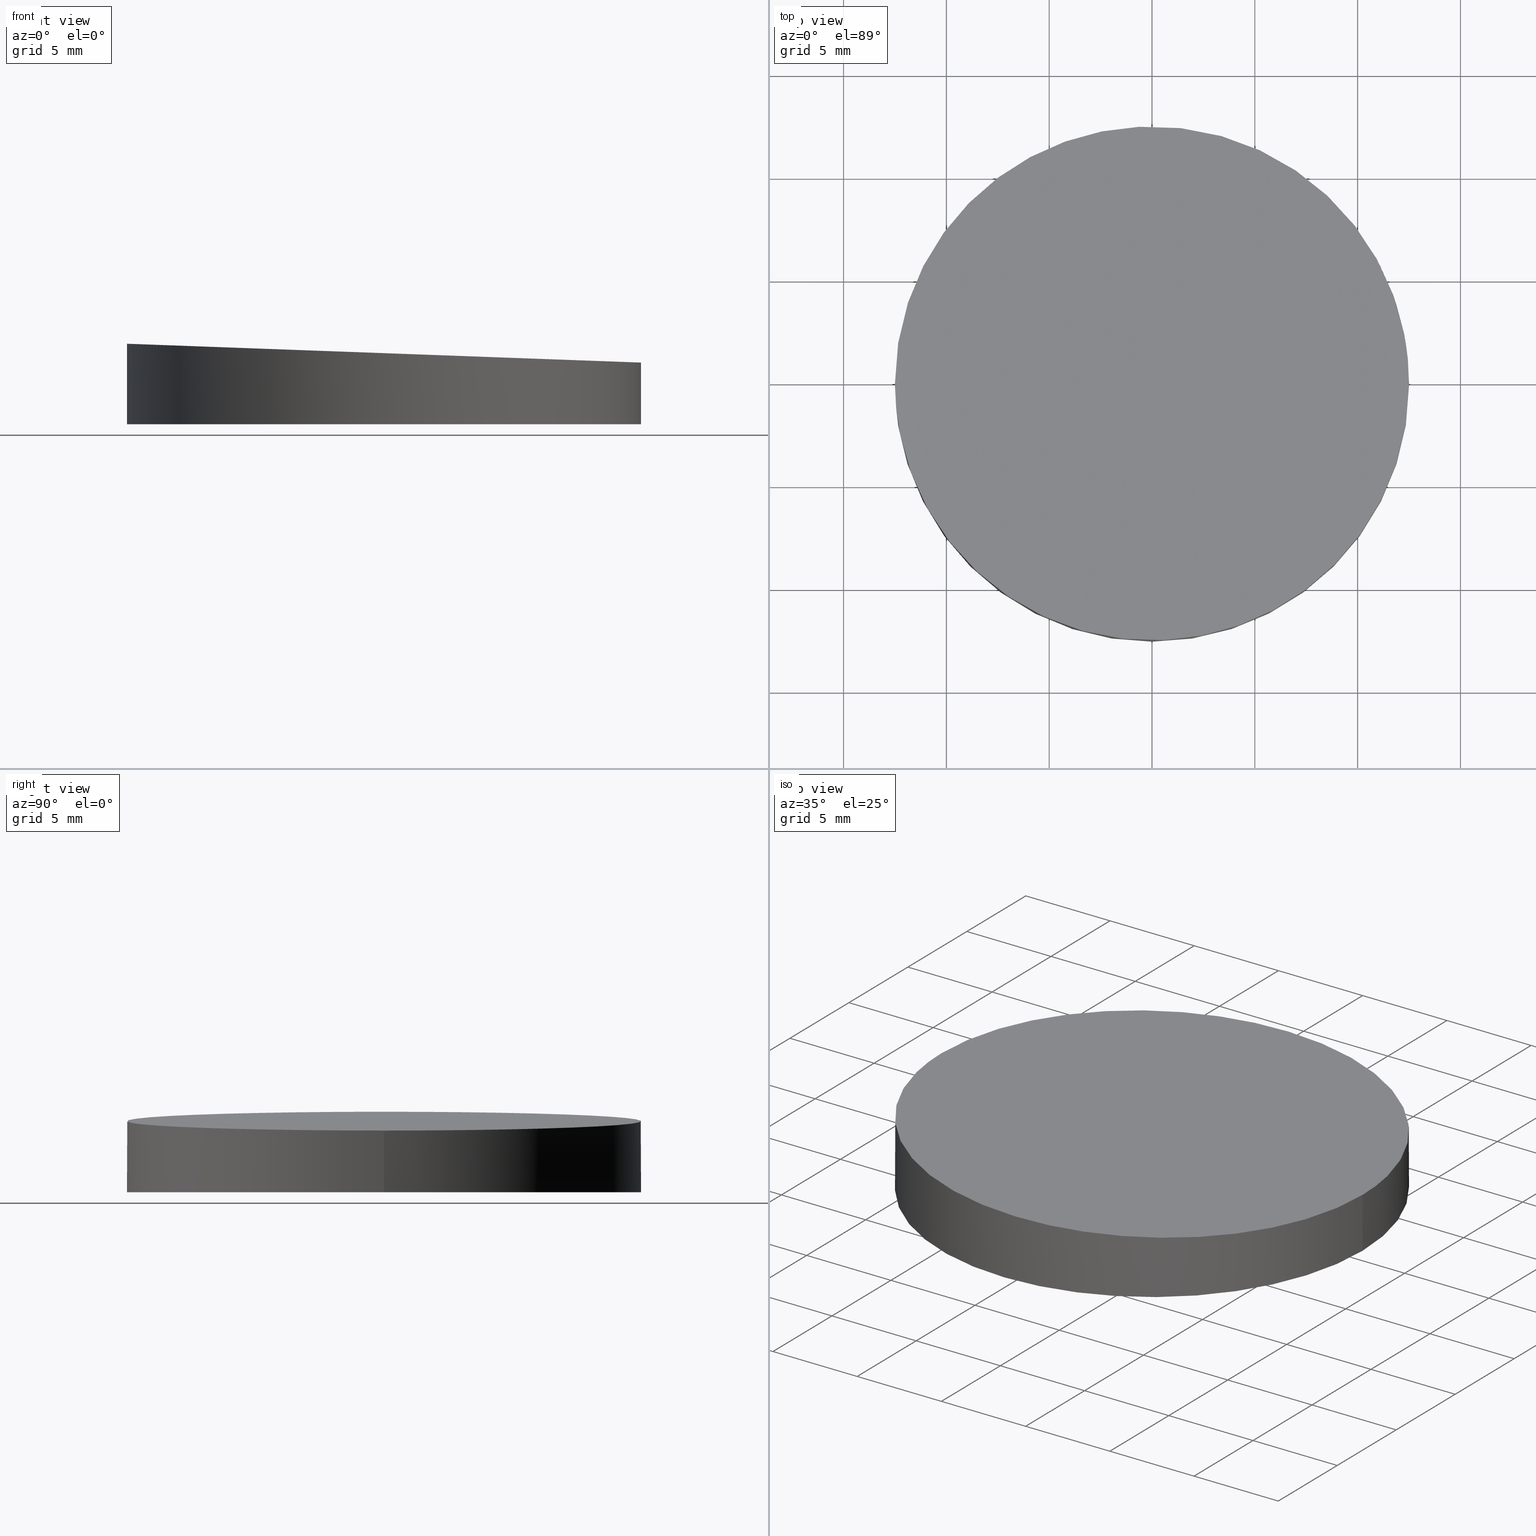
[diagram: canonical four-view strip — front | top / right | iso, engineering-drawing reading convention]
A machine part, canonical four-view strip (front | top / right | iso — engineering-drawing reading convention). The complete STEP part file that produces these views, byte-faithful:
ISO-10303-21;
HEADER;
FILE_DESCRIPTION (( 'STEP AP203' ),
    '1' );
FILE_NAME ('373531.STEP',
    '2021-05-27T04:28:09',
    ( '' ),
    ( '' ),
    'SwSTEP 2.0',
    'SolidWorks 2020',
    '' );
FILE_SCHEMA (( 'CONFIG_CONTROL_DESIGN' ));
ENDSEC;

DATA;
#1 = VERTEX_POINT ( 'NONE', #31 ) ;
#2 = ORIENTED_EDGE ( 'NONE', *, *, #131, .F. ) ;
#3 = ORIENTED_EDGE ( 'NONE', *, *, #86, .F. ) ;
#4 = CC_DESIGN_PERSON_AND_ORGANIZATION_ASSIGNMENT ( #42, #69, ( #7 ) ) ;
#5 = CARTESIAN_POINT ( 'NONE',  ( -12.49999999999999645, 0.000000000000000000, 3.915834547854477155 ) ) ;
#6 = PLANE ( 'NONE',  #34 ) ;
#7 = PRODUCT ( '373531', '373531', '', ( #95 ) ) ;
#8 = CARTESIAN_POINT ( 'NONE',  ( 0.000000000000000000, 0.000000000000000000, 0.000000000000000000 ) ) ;
#9 = APPROVAL_ROLE ( '' ) ;
#10 = CIRCLE ( 'NONE', #108, 12.49999999999999645 ) ;
#11 = AXIS2_PLACEMENT_3D ( 'NONE', #156, #92, #124 ) ;
#12 = APPLICATION_CONTEXT ( 'configuration controlled 3d designs of mechanical parts and assemblies' ) ;
#13 = ADVANCED_FACE ( 'NONE', ( #145 ), #58, .T. ) ;
#14 = DATE_AND_TIME ( #88, #19 ) ;
#15 = COORDINATED_UNIVERSAL_TIME_OFFSET ( 8, 0, .AHEAD. ) ;
#16 = LOCAL_TIME ( 12, 28, 9.000000000000000000, #54 ) ;
#17 = PERSON_AND_ORGANIZATION ( #102, #64 ) ;
#18 = UNCERTAINTY_MEASURE_WITH_UNIT (LENGTH_MEASURE( 1.000000000000000082E-05 ), #94, 'distance_accuracy_value', 'NONE');
#19 = LOCAL_TIME ( 12, 28, 9.000000000000000000, #15 ) ;
#20 =( BOUNDED_CURVE ( )  B_SPLINE_CURVE ( 3, ( #83, #136, #167, #5 ),
 .UNSPECIFIED., .F., .F. ) 
 B_SPLINE_CURVE_WITH_KNOTS ( ( 4, 4 ),
 ( 0.000000000000000000, 3.141592653589793116 ),
 .UNSPECIFIED. ) 
 CURVE ( )  GEOMETRIC_REPRESENTATION_ITEM ( )  RATIONAL_B_SPLINE_CURVE ( ( 1.000000000000000000, 0.3333333333333333703, 0.3333333333333333703, 1.000000000000000000 ) ) 
 REPRESENTATION_ITEM ( '' )  );
#21 = ORIENTED_EDGE ( 'NONE', *, *, #51, .F. ) ;
#22 = LOCAL_TIME ( 12, 28, 9.000000000000000000, #26 ) ;
#23 = CARTESIAN_POINT ( 'NONE',  ( -12.49999999999999645, 0.000000000000000000, 3.915834547854477155 ) ) ;
#24 = FACE_OUTER_BOUND ( 'NONE', #43, .T. ) ;
#25 = DIRECTION ( 'NONE',  ( -0.9993296722765644402, 0.000000000000000000, 0.03660882554267880229 ) ) ;
#26 = COORDINATED_UNIVERSAL_TIME_OFFSET ( 8, 0, .AHEAD. ) ;
#27 = PERSON_AND_ORGANIZATION_ROLE ( 'classification_officer' ) ;
#28 = APPROVAL_PERSON_ORGANIZATION ( #172, #29, #67 ) ;
#29 = APPROVAL ( #149, 'δָ��' ) ;
#30 = DIRECTION ( 'NONE',  ( -0.000000000000000000, -0.000000000000000000, -1.000000000000000000 ) ) ;
#31 = CARTESIAN_POINT ( 'NONE',  ( 12.49999999999999645, 1.530808498934191127E-15, 0.000000000000000000 ) ) ;
#32 = ORIENTED_EDGE ( 'NONE', *, *, #74, .F. ) ;
#33 = ORIENTED_EDGE ( 'NONE', *, *, #174, .T. ) ;
#34 = AXIS2_PLACEMENT_3D ( 'NONE', #84, #109, #25 ) ;
#35 = SECURITY_CLASSIFICATION ( '', '', #128 ) ;
#36 =( NAMED_UNIT ( * ) PLANE_ANGLE_UNIT ( ) SI_UNIT ( $, .RADIAN. ) );
#37 = LINE ( 'NONE', #66, #134 ) ;
#38 = CC_DESIGN_APPROVAL ( #48, ( #113 ) ) ;
#39 = DIRECTION ( 'NONE',  ( 1.000000000000000000, 0.000000000000000000, 0.000000000000000000 ) ) ;
#40 = PERSON_AND_ORGANIZATION_ROLE ( 'design_supplier' ) ;
#41 = COORDINATED_UNIVERSAL_TIME_OFFSET ( 8, 0, .AHEAD. ) ;
#42 = PERSON_AND_ORGANIZATION ( #102, #64 ) ;
#43 = EDGE_LOOP ( 'NONE', ( #119, #165, #132, #91 ) ) ;
#44 = EDGE_LOOP ( 'NONE', ( #32, #33, #103, #61 ) ) ;
#45 = PRODUCT_RELATED_PRODUCT_CATEGORY ( 'detail', '', ( #7 ) ) ;
#46 = DIRECTION ( 'NONE',  ( 1.000000000000000000, 0.000000000000000000, -0.000000000000000000 ) ) ;
#47 = DIRECTION ( 'NONE',  ( -0.000000000000000000, -0.000000000000000000, -1.000000000000000000 ) ) ;
#48 = APPROVAL ( #52, 'δָ��' ) ;
#49 = DIRECTION ( 'NONE',  ( -0.000000000000000000, -0.000000000000000000, -1.000000000000000000 ) ) ;
#50 = PRODUCT_DEFINITION_SHAPE ( 'NONE', 'NONE',  #143 ) ;
#51 = EDGE_CURVE ( 'NONE', #1, #78, #10, .T. ) ;
#52 = APPROVAL_STATUS ( 'not_yet_approved' ) ;
#53 = CALENDAR_DATE ( 2021, 27, 5 ) ;
#54 = COORDINATED_UNIVERSAL_TIME_OFFSET ( 8, 0, .AHEAD. ) ;
#55 = ADVANCED_FACE ( 'NONE', ( #137 ), #81, .F. ) ;
#56 = APPROVAL_DATE_TIME ( #14, #29 ) ;
#57 = APPLICATION_CONTEXT ( 'configuration controlled 3d designs of mechanical parts and assemblies' ) ;
#58 = CYLINDRICAL_SURFACE ( 'NONE', #76, 12.49999999999999645 ) ;
#59 = CIRCLE ( 'NONE', #96, 12.49999999999999645 ) ;
#60 = APPROVAL_PERSON_ORGANIZATION ( #68, #48, #9 ) ;
#61 = ORIENTED_EDGE ( 'NONE', *, *, #86, .T. ) ;
#62 = CARTESIAN_POINT ( 'NONE',  ( 0.000000000000000000, 0.000000000000000000, 0.000000000000000000 ) ) ;
#63 = AXIS2_PLACEMENT_3D ( 'NONE', #139, #47, #158 ) ;
#64 = ORGANIZATION ( 'δָ��', 'δָ��', '' ) ;
#65 = CARTESIAN_POINT ( 'NONE',  ( 12.50000000000000000, 24.99999999999998934, 2.999999999999999556 ) ) ;
#66 = CARTESIAN_POINT ( 'NONE',  ( 12.49999999999999645, 1.530808498934191127E-15, 10.00000000000000000 ) ) ;
#67 = APPROVAL_ROLE ( '' ) ;
#68 = PERSON_AND_ORGANIZATION ( #102, #64 ) ;
#69 = PERSON_AND_ORGANIZATION_ROLE ( 'design_owner' ) ;
#70 = CLOSED_SHELL ( 'NONE', ( #106, #13, #55, #71 ) ) ;
#71 = ADVANCED_FACE ( 'NONE', ( #125 ), #6, .F. ) ;
#72 = LOCAL_TIME ( 12, 28, 9.000000000000000000, #41 ) ;
#73 = PERSON_AND_ORGANIZATION ( #102, #64 ) ;
#74 = EDGE_CURVE ( 'NONE', #133, #1, #37, .T. ) ;
#75 = ORIENTED_EDGE ( 'NONE', *, *, #174, .F. ) ;
#76 = AXIS2_PLACEMENT_3D ( 'NONE', #164, #30, #90 ) ;
#77 = APPROVAL_PERSON_ORGANIZATION ( #73, #79, #127 ) ;
#78 = VERTEX_POINT ( 'NONE', #157 ) ;
#79 = APPROVAL ( #171, 'δָ��' ) ;
#80 = CARTESIAN_POINT ( 'NONE',  ( -12.49999999999999645, 0.000000000000000000, 3.915834547854477155 ) ) ;
#81 = PLANE ( 'NONE',  #112 ) ;
#82 = EDGE_CURVE ( 'NONE', #122, #78, #85, .T. ) ;
#83 = CARTESIAN_POINT ( 'NONE',  ( 12.49999999999999645, 1.530808498934191127E-15, 3.000000000000000000 ) ) ;
#84 = CARTESIAN_POINT ( 'NONE',  ( 12.49999999999999645, -25.00000000000000000, 3.000000000000000000 ) ) ;
#85 = LINE ( 'NONE', #169, #99 ) ;
#86 = EDGE_CURVE ( 'NONE', #78, #1, #59, .T. ) ;
#87 = DATE_TIME_ROLE ( 'classification_date' ) ;
#88 = CALENDAR_DATE ( 2021, 27, 5 ) ;
#89 = DATE_TIME_ROLE ( 'creation_date' ) ;
#90 = DIRECTION ( 'NONE',  ( -1.000000000000000000, 0.000000000000000000, 0.000000000000000000 ) ) ;
#91 = ORIENTED_EDGE ( 'NONE', *, *, #82, .F. ) ;
#92 = DIRECTION ( 'NONE',  ( 0.000000000000000000, 0.000000000000000000, 1.000000000000000000 ) ) ;
#93 = MANIFOLD_SOLID_BREP ( '�г�-����1', #70 ) ;
#94 =( LENGTH_UNIT ( ) NAMED_UNIT ( * ) SI_UNIT ( .MILLI., .METRE. ) );
#95 = MECHANICAL_CONTEXT ( 'NONE', #12, 'mechanical' ) ;
#96 = AXIS2_PLACEMENT_3D ( 'NONE', #62, #147, #39 ) ;
#97 = CYLINDRICAL_SURFACE ( 'NONE', #63, 12.49999999999999645 ) ;
#98 = CALENDAR_DATE ( 2021, 27, 5 ) ;
#99 = VECTOR ( 'NONE', #49, 1000.000000000000000 ) ;
#100 = COORDINATED_UNIVERSAL_TIME_OFFSET ( 8, 0, .AHEAD. ) ;
#101 = CC_DESIGN_APPROVAL ( #29, ( #143 ) ) ;
#102 = PERSON ( 'δָ��', 'δָ��', 'δָ��', ('δָ��'), ('δָ��'), ('δָ��') ) ;
#103 = ORIENTED_EDGE ( 'NONE', *, *, #82, .T. ) ;
#104 =( GEOMETRIC_REPRESENTATION_CONTEXT ( 3 ) GLOBAL_UNCERTAINTY_ASSIGNED_CONTEXT ( ( #18 ) ) GLOBAL_UNIT_ASSIGNED_CONTEXT ( ( #94, #36, #146 ) ) REPRESENTATION_CONTEXT ( 'NONE', 'WORKASPACE' ) );
#105 = CC_DESIGN_DATE_AND_TIME_ASSIGNMENT ( #129, #87, ( #35 ) ) ;
#106 = ADVANCED_FACE ( 'NONE', ( #24 ), #97, .T. ) ;
#107 = CARTESIAN_POINT ( 'NONE',  ( 12.49999999999999645, 1.530808498934191127E-15, 3.000000000000000000 ) ) ;
#108 = AXIS2_PLACEMENT_3D ( 'NONE', #114, #140, #159 ) ;
#109 = DIRECTION ( 'NONE',  ( -0.03660882554267880229, 0.000000000000000000, -0.9993296722765644402 ) ) ;
#110 = DIRECTION ( 'NONE',  ( 0.000000000000000000, 0.000000000000000000, 1.000000000000000000 ) ) ;
#111 = DIRECTION ( 'NONE',  ( -0.000000000000000000, -0.000000000000000000, -1.000000000000000000 ) ) ;
#112 = AXIS2_PLACEMENT_3D ( 'NONE', #8, #110, #46 ) ;
#113 = PRODUCT_DEFINITION_FORMATION_WITH_SPECIFIED_SOURCE ( '�κ�', '', #7, .NOT_KNOWN. ) ;
#114 = CARTESIAN_POINT ( 'NONE',  ( 0.000000000000000000, 0.000000000000000000, 0.000000000000000000 ) ) ;
#115 = CC_DESIGN_DATE_AND_TIME_ASSIGNMENT ( #152, #89, ( #143 ) ) ;
#116 = APPLICATION_PROTOCOL_DEFINITION ( 'international standard', 'config_control_design', 1994, #57 ) ;
#117 = PERSON_AND_ORGANIZATION ( #102, #64 ) ;
#118 = PERSON_AND_ORGANIZATION ( #102, #64 ) ;
#119 = ORIENTED_EDGE ( 'NONE', *, *, #131, .T. ) ;
#120 = EDGE_LOOP ( 'NONE', ( #2, #75 ) ) ;
#121 = LOCAL_TIME ( 12, 28, 9.000000000000000000, #100 ) ;
#122 = VERTEX_POINT ( 'NONE', #23 ) ;
#123 = CC_DESIGN_APPROVAL ( #79, ( #35 ) ) ;
#124 = DIRECTION ( 'NONE',  ( 1.000000000000000000, 0.000000000000000000, 0.000000000000000000 ) ) ;
#125 = FACE_OUTER_BOUND ( 'NONE', #120, .T. ) ;
#126 = CALENDAR_DATE ( 2021, 27, 5 ) ;
#127 = APPROVAL_ROLE ( '' ) ;
#128 = SECURITY_CLASSIFICATION_LEVEL ( 'unclassified' ) ;
#129 = DATE_AND_TIME ( #163, #121 ) ;
#130 = APPROVAL_DATE_TIME ( #173, #79 ) ;
#131 = EDGE_CURVE ( 'NONE', #122, #133, #144, .T. ) ;
#132 = ORIENTED_EDGE ( 'NONE', *, *, #51, .T. ) ;
#133 = VERTEX_POINT ( 'NONE', #135 ) ;
#134 = VECTOR ( 'NONE', #111, 1000.000000000000000 ) ;
#135 = CARTESIAN_POINT ( 'NONE',  ( 12.49999999999999645, 1.530808498934191127E-15, 3.000000000000000000 ) ) ;
#136 = CARTESIAN_POINT ( 'NONE',  ( 12.50000000000000000, -24.99999999999998934, 2.999999999999999556 ) ) ;
#137 = FACE_OUTER_BOUND ( 'NONE', #155, .T. ) ;
#138 = CC_DESIGN_PERSON_AND_ORGANIZATION_ASSIGNMENT ( #17, #40, ( #113 ) ) ;
#139 = CARTESIAN_POINT ( 'NONE',  ( 0.000000000000000000, 0.000000000000000000, 10.00000000000000000 ) ) ;
#140 = DIRECTION ( 'NONE',  ( 0.000000000000000000, 0.000000000000000000, 1.000000000000000000 ) ) ;
#141 = PERSON_AND_ORGANIZATION_ROLE ( 'creator' ) ;
#142 = PERSON_AND_ORGANIZATION_ROLE ( 'creator' ) ;
#143 = PRODUCT_DEFINITION ( 'δ֪', '', #113, #153 ) ;
#144 =( BOUNDED_CURVE ( )  B_SPLINE_CURVE ( 3, ( #80, #148, #65, #107 ),
 .UNSPECIFIED., .F., .F. ) 
 B_SPLINE_CURVE_WITH_KNOTS ( ( 4, 4 ),
 ( 3.141592653589793116, 6.283185307179586232 ),
 .UNSPECIFIED. ) 
 CURVE ( )  GEOMETRIC_REPRESENTATION_ITEM ( )  RATIONAL_B_SPLINE_CURVE ( ( 1.000000000000000000, 0.3333333333333333703, 0.3333333333333333703, 1.000000000000000000 ) ) 
 REPRESENTATION_ITEM ( '' )  );
#145 = FACE_OUTER_BOUND ( 'NONE', #44, .T. ) ;
#146 =( NAMED_UNIT ( * ) SI_UNIT ( $, .STERADIAN. ) SOLID_ANGLE_UNIT ( ) );
#147 = DIRECTION ( 'NONE',  ( 0.000000000000000000, 0.000000000000000000, 1.000000000000000000 ) ) ;
#148 = CARTESIAN_POINT ( 'NONE',  ( -12.50000000000000533, 24.99999999999998934, 3.915834547854476710 ) ) ;
#149 = APPROVAL_STATUS ( 'not_yet_approved' ) ;
#150 = PERSON_AND_ORGANIZATION ( #102, #64 ) ;
#151 = DATE_AND_TIME ( #126, #72 ) ;
#152 = DATE_AND_TIME ( #53, #16 ) ;
#153 = DESIGN_CONTEXT ( 'detailed design', #57, 'design' ) ;
#154 = CC_DESIGN_PERSON_AND_ORGANIZATION_ASSIGNMENT ( #118, #142, ( #143 ) ) ;
#155 = EDGE_LOOP ( 'NONE', ( #3, #21 ) ) ;
#156 = CARTESIAN_POINT ( 'NONE',  ( 0.000000000000000000, 0.000000000000000000, 0.000000000000000000 ) ) ;
#157 = CARTESIAN_POINT ( 'NONE',  ( -12.49999999999999645, 0.000000000000000000, 0.000000000000000000 ) ) ;
#158 = DIRECTION ( 'NONE',  ( -1.000000000000000000, 0.000000000000000000, 0.000000000000000000 ) ) ;
#159 = DIRECTION ( 'NONE',  ( 1.000000000000000000, 0.000000000000000000, 0.000000000000000000 ) ) ;
#160 = APPROVAL_DATE_TIME ( #151, #48 ) ;
#161 = ADVANCED_BREP_SHAPE_REPRESENTATION ( '373531', ( #93, #11 ), #104 ) ;
#162 = CC_DESIGN_PERSON_AND_ORGANIZATION_ASSIGNMENT ( #117, #141, ( #113 ) ) ;
#163 = CALENDAR_DATE ( 2021, 27, 5 ) ;
#164 = CARTESIAN_POINT ( 'NONE',  ( 0.000000000000000000, 0.000000000000000000, 10.00000000000000000 ) ) ;
#165 = ORIENTED_EDGE ( 'NONE', *, *, #74, .T. ) ;
#166 = CC_DESIGN_SECURITY_CLASSIFICATION ( #35, ( #113 ) ) ;
#167 = CARTESIAN_POINT ( 'NONE',  ( -12.49999999999999467, -24.99999999999998934, 3.915834547854476710 ) ) ;
#168 = APPLICATION_PROTOCOL_DEFINITION ( 'international standard', 'config_control_design', 1994, #12 ) ;
#169 = CARTESIAN_POINT ( 'NONE',  ( -12.49999999999999645, 0.000000000000000000, 10.00000000000000000 ) ) ;
#170 = CC_DESIGN_PERSON_AND_ORGANIZATION_ASSIGNMENT ( #150, #27, ( #35 ) ) ;
#171 = APPROVAL_STATUS ( 'not_yet_approved' ) ;
#172 = PERSON_AND_ORGANIZATION ( #102, #64 ) ;
#173 = DATE_AND_TIME ( #98, #22 ) ;
#174 = EDGE_CURVE ( 'NONE', #133, #122, #20, .T. ) ;
#175 = SHAPE_DEFINITION_REPRESENTATION ( #50, #161 ) ;
ENDSEC;
END-ISO-10303-21;
